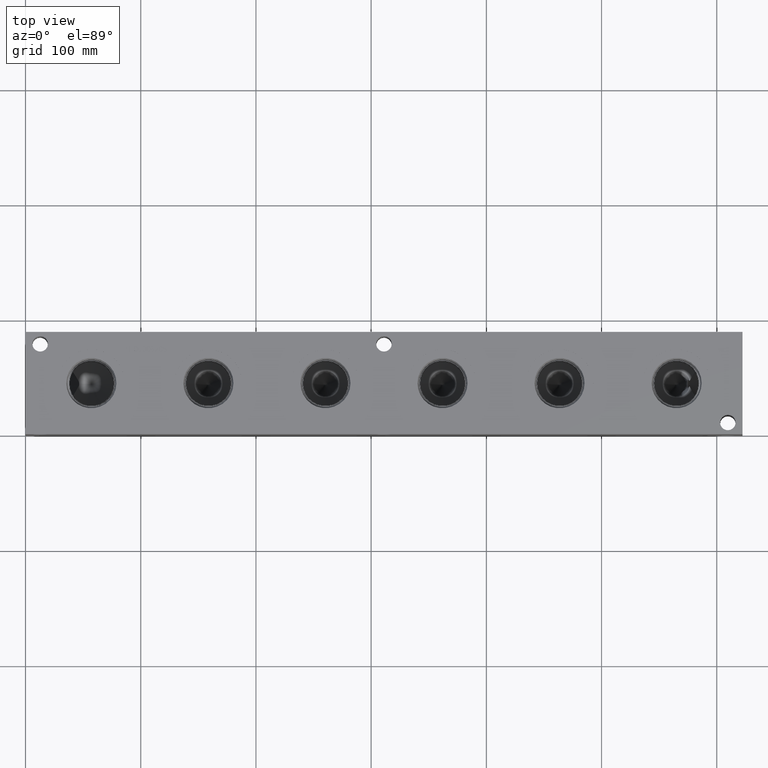
[diagram: clean part render]
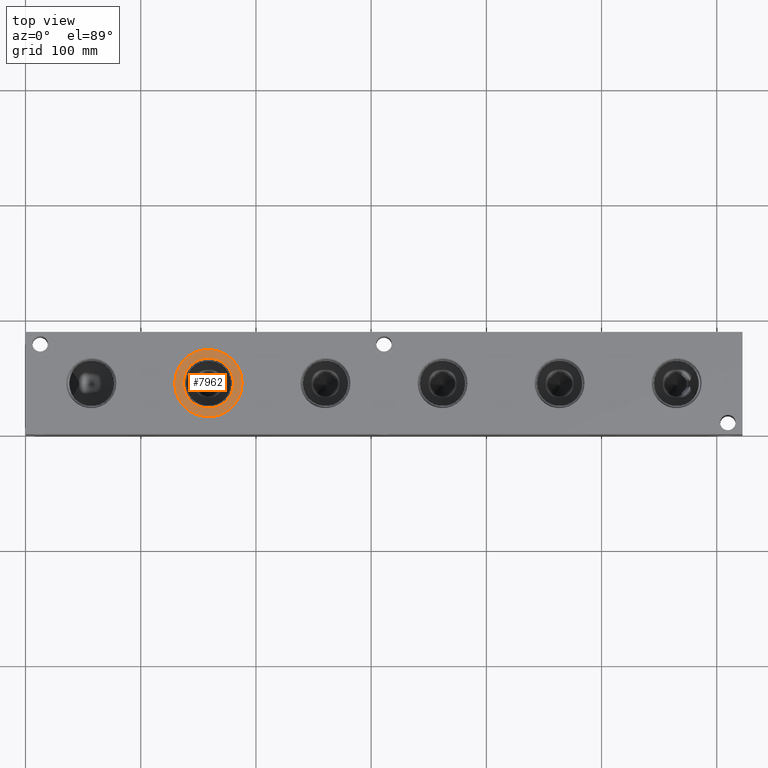
[diagram: same view with one face highlighted and labeled with its STEP entity id]
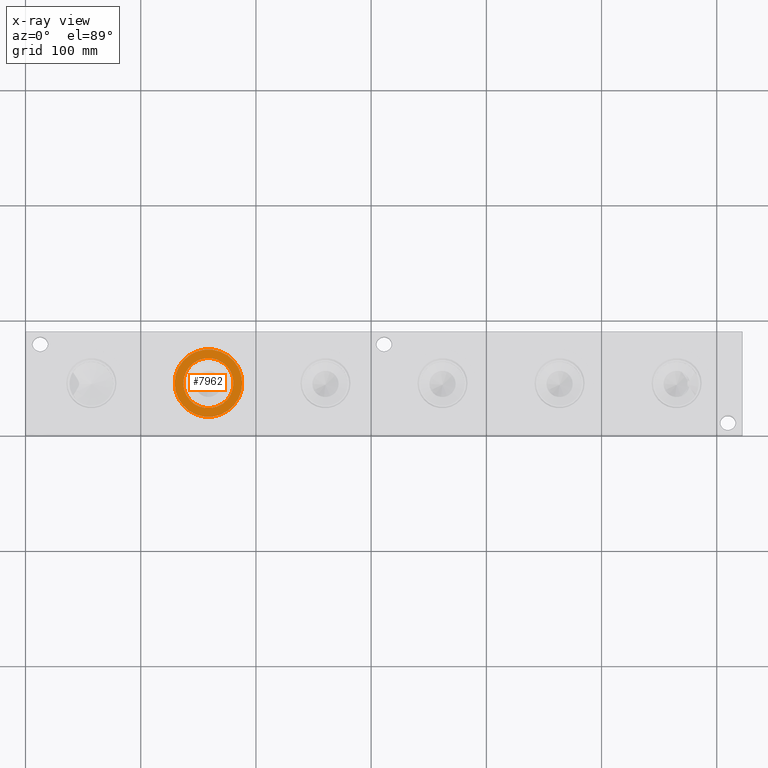
[diagram: x-ray of the same camera — body ghosted, the highlighted face saturated]
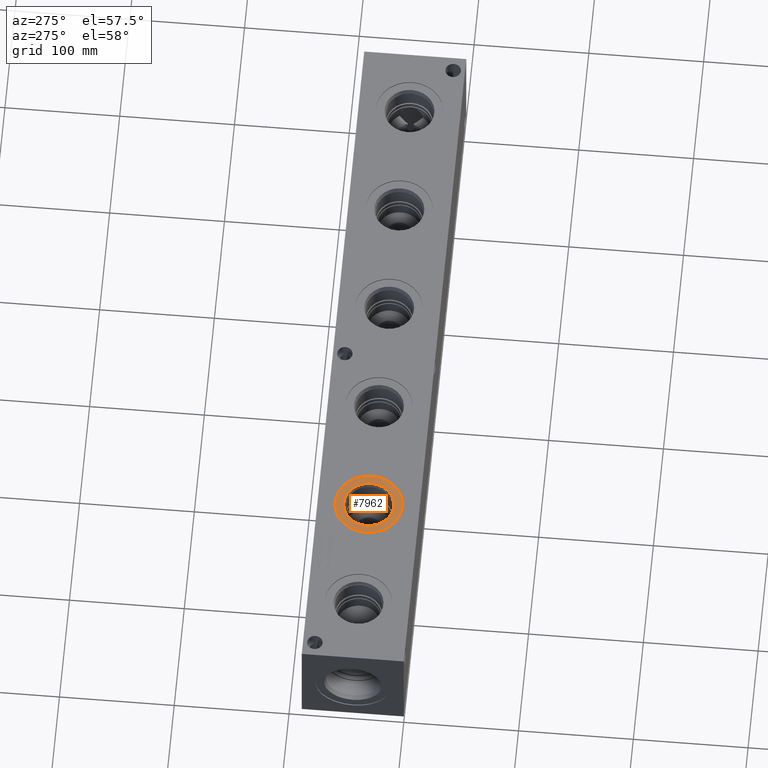
[diagram: same view with one face highlighted and labeled with its STEP entity id]
A machine part, top view. The second image highlights one B-rep face of the part: STEP entity #7962.
The next image is the same camera in x-ray: the body ghosted, the highlighted face saturated — about 0% of this face is hidden behind the body in this view.
A second angle (auxiliary view) of the same face is appended — the face is thin or edge-on in the first view.
In plain terms, the highlighted planar face has unit normal (0, 0, 1).
Its self-contained STEP definition (entity closure, byte-faithful):
#209=CIRCLE('',#8387,29.2862);
#210=CIRCLE('',#8388,29.2862);
#211=CIRCLE('',#8389,21.7551);
#316=FACE_BOUND('',#1511,.T.);
#1053=FACE_OUTER_BOUND('',#1510,.T.);
#1510=EDGE_LOOP('',(#6825,#6826));
#1511=EDGE_LOOP('',(#6827));
#3662=VERTEX_POINT('',#13747);
#3663=VERTEX_POINT('',#13748);
#3664=VERTEX_POINT('',#13751);
#4743=EDGE_CURVE('',#3662,#3663,#209,.T.);
#4744=EDGE_CURVE('',#3663,#3662,#210,.T.);
#4745=EDGE_CURVE('',#3664,#3664,#211,.T.);
#6825=ORIENTED_EDGE('',*,*,#4743,.T.);
#6826=ORIENTED_EDGE('',*,*,#4744,.T.);
#6827=ORIENTED_EDGE('',*,*,#4745,.F.);
#7284=PLANE('',#8386);
#7962=ADVANCED_FACE('',(#1053,#316),#7284,.T.);
#8386=AXIS2_PLACEMENT_3D('',#13746,#9884,#9885);
#8387=AXIS2_PLACEMENT_3D('',#13749,#9886,#9887);
#8388=AXIS2_PLACEMENT_3D('',#13750,#9888,#9889);
#8389=AXIS2_PLACEMENT_3D('',#13752,#9890,#9891);
#9884=DIRECTION('center_axis',(0.,0.,1.));
#9885=DIRECTION('ref_axis',(1.,0.,0.));
#9886=DIRECTION('center_axis',(0.,0.,1.));
#9887=DIRECTION('ref_axis',(1.,0.,0.));
#9888=DIRECTION('center_axis',(0.,0.,1.));
#9889=DIRECTION('ref_axis',(1.,0.,0.));
#9890=DIRECTION('center_axis',(0.,0.,1.));
#9891=DIRECTION('ref_axis',(1.,0.,0.));
#13746=CARTESIAN_POINT('Origin',(158.75,44.45,88.1126));
#13747=CARTESIAN_POINT('',(188.0362,44.45,88.1126));
#13748=CARTESIAN_POINT('',(129.4638,44.45,88.1126));
#13749=CARTESIAN_POINT('Origin',(158.75,44.45,88.1126));
#13750=CARTESIAN_POINT('Origin',(158.75,44.45,88.1126));
#13751=CARTESIAN_POINT('',(136.9949,44.45,88.1126));
#13752=CARTESIAN_POINT('Origin',(158.75,44.45,88.1126));